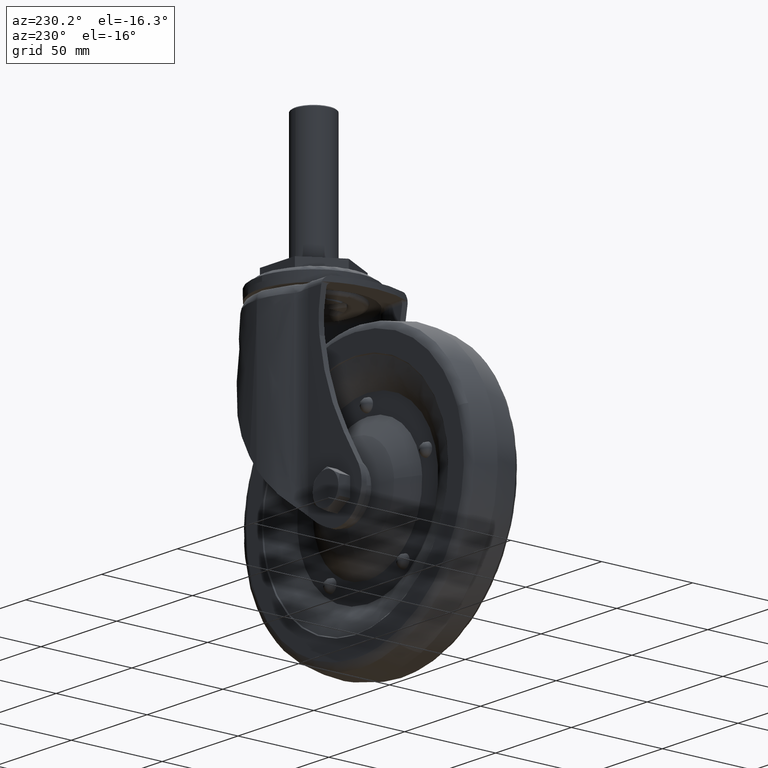
[diagram: clean part render]
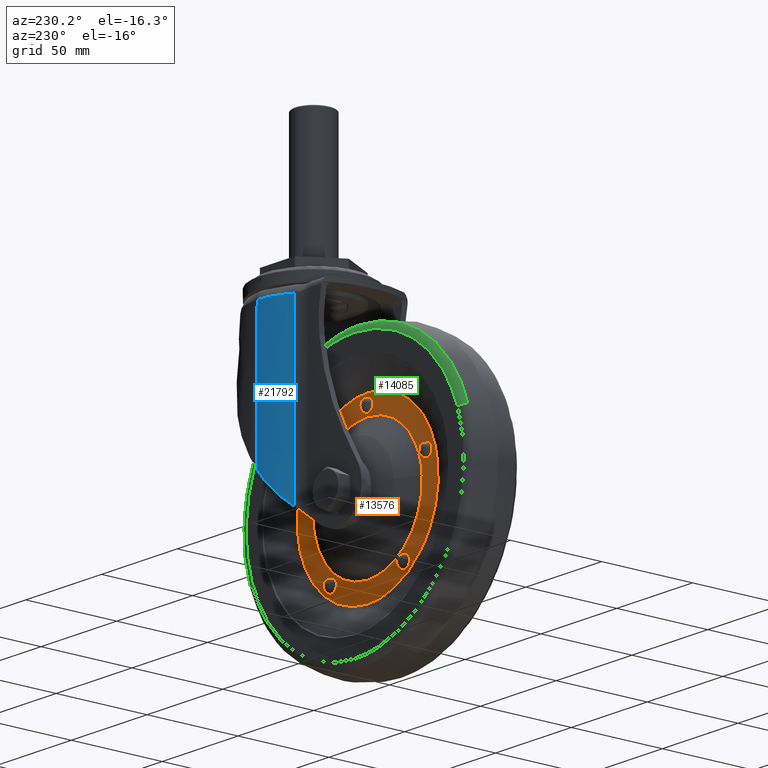
[diagram: same view with three faces highlighted in distinct colors, each labeled with its STEP entity id]
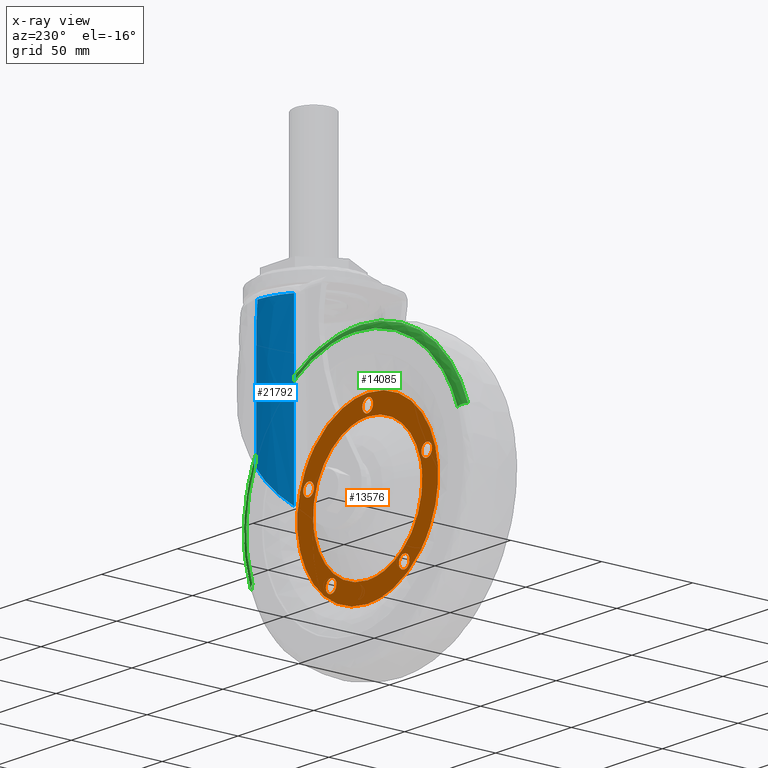
[diagram: x-ray of the same camera — body ghosted, the three highlighted faces saturated]
A machine part, auxiliary view with three faces highlighted in distinct colors.
The next image is the same camera in x-ray (body ghosted, the three faces saturated) — at least one of them is partly hidden behind the body in this view.
Their STEP definitions:

[orange] entity #13576 — the highlighted face is a freeform B-spline surface patch.
#12831=CARTESIAN_POINT('',(-79.932852743208727,6.999999999973571,-104.402252481111200));
#12832=VERTEX_POINT('',#12831);
#12838=CARTESIAN_POINT('',(-44.0,7.0,-70.599999904632583));
#12839=VERTEX_POINT('',#12838);
#12840=CARTESIAN_POINT('',(-44.0,7.0,-70.599999904632583));
#12841=CARTESIAN_POINT('',(-77.865418408374396,6.999999999986783,-70.599999904631403));
#12842=CARTESIAN_POINT('',(-79.932852743208727,6.999999999973571,-104.402252481111160));
#12850=(BOUNDED_CURVE()B_SPLINE_CURVE(2,(#12840,#12841,#12842),.UNSPECIFIED.,.F.,.U.)B_SPLINE_CURVE_WITH_KNOTS((3,3),(0.500000000000000,0.739332962240700),.UNSPECIFIED.)CURVE()GEOMETRIC_REPRESENTATION_ITEM()RATIONAL_B_SPLINE_CURVE((1.0,0.719603993284652,0.976072041670483))REPRESENTATION_ITEM(''));
#12851=EDGE_CURVE('',#12839,#12832,#12850,.T.);
#12853=CARTESIAN_POINT('',(-8.067147256791273,6.999999999973568,-108.797747328153900));
#12854=VERTEX_POINT('',#12853);
#12855=CARTESIAN_POINT('',(-8.067147256791273,6.999999999973568,-108.797747328153930));
#12856=CARTESIAN_POINT('',(-7.999999999962867,6.999999999973948,-107.699899383516540));
#12857=CARTESIAN_POINT('',(-7.999999999963443,6.999999999974352,-106.599999904634800));
#12858=CARTESIAN_POINT('',(-7.999999999982279,6.999999999987566,-70.599999904633663));
#12859=CARTESIAN_POINT('',(-44.0,7.0,-70.599999904632583));
#12867=(BOUNDED_CURVE()B_SPLINE_CURVE(2,(#12855,#12856,#12857,#12858,#12859),.UNSPECIFIED.,.F.,.U.)B_SPLINE_CURVE_WITH_KNOTS((3,2,3),(0.239332962240700,0.250000000000000,0.500000000000000),.UNSPECIFIED.)CURVE()GEOMETRIC_REPRESENTATION_ITEM()RATIONAL_B_SPLINE_CURVE((0.976072041670483,0.987502787901895,1.0,0.707106781186547,1.0))REPRESENTATION_ITEM(''));
#12868=EDGE_CURVE('',#12854,#12839,#12867,.T.);
#12898=CARTESIAN_POINT('',(-44.0,7.0,-142.599999904632600));
#12899=VERTEX_POINT('',#12898);
#12900=CARTESIAN_POINT('',(-44.0,7.0,-142.599999904632600));
#12901=CARTESIAN_POINT('',(-10.134581591625633,6.999999999986782,-142.599999904633680));
#12902=CARTESIAN_POINT('',(-8.067147256791273,6.999999999973568,-108.797747328153950));
#12910=(BOUNDED_CURVE()B_SPLINE_CURVE(2,(#12900,#12901,#12902),.UNSPECIFIED.,.F.,.U.)B_SPLINE_CURVE_WITH_KNOTS((3,3),(0.0,0.239332962240700),.UNSPECIFIED.)CURVE()GEOMETRIC_REPRESENTATION_ITEM()RATIONAL_B_SPLINE_CURVE((1.0,0.719603993284652,0.976072041670482))REPRESENTATION_ITEM(''));
#12911=EDGE_CURVE('',#12899,#12854,#12910,.T.);
#12913=CARTESIAN_POINT('',(-79.932852743208727,6.999999999973571,-104.402252481111160));
#12914=CARTESIAN_POINT('',(-80.000000000037133,6.999999999973951,-105.500100425748610));
#12915=CARTESIAN_POINT('',(-80.000000000036550,6.999999999974354,-106.599999904630290));
#12916=CARTESIAN_POINT('',(-80.000000000017721,6.999999999987569,-142.599999904631430));
#12917=CARTESIAN_POINT('',(-44.0,7.0,-142.599999904632600));
#12925=(BOUNDED_CURVE()B_SPLINE_CURVE(2,(#12913,#12914,#12915,#12916,#12917),.UNSPECIFIED.,.F.,.U.)B_SPLINE_CURVE_WITH_KNOTS((3,2,3),(0.739332962240700,0.750000000000000,1.0),.UNSPECIFIED.)CURVE()GEOMETRIC_REPRESENTATION_ITEM()RATIONAL_B_SPLINE_CURVE((0.976072041670483,0.987502787901896,1.0,0.707106781186547,1.0))REPRESENTATION_ITEM(''));
#12926=EDGE_CURVE('',#12832,#12899,#12925,.T.);
#13099=CARTESIAN_POINT('',(-82.993317168101399,7.0,-90.430303135259607));
#13100=VERTEX_POINT('',#13099);
#13101=CARTESIAN_POINT('',(-82.993317168101399,7.0,-97.430303135259720));
#13102=VERTEX_POINT('',#13101);
#13103=CARTESIAN_POINT('',(-82.993317168101399,7.0,-90.430303135259607));
#13104=CARTESIAN_POINT('',(-83.365553491881627,7.000000000000003,-90.430117954533557));
#13105=CARTESIAN_POINT('',(-84.138657910030133,7.0,-90.554684572518880));
#13106=CARTESIAN_POINT('',(-85.086781059677307,6.999999999999997,-91.061479309435867));
#13107=CARTESIAN_POINT('',(-85.862188045682529,7.000000000000015,-91.836817431341771));
#13108=CARTESIAN_POINT('',(-86.286818697975519,6.999999999999990,-92.631261616344801));
#13109=CARTESIAN_POINT('',(-86.492383916415406,7.000000000000053,-93.498197281616058));
#13110=CARTESIAN_POINT('',(-86.515516196637421,6.999999999999989,-94.421162093873050));
#13111=CARTESIAN_POINT('',(-86.231487493401715,7.000000000000002,-95.399879588436576));
#13112=CARTESIAN_POINT('',(-85.622297413137488,6.999999999999997,-96.311531010389373));
#13113=CARTESIAN_POINT('',(-84.934390602176862,7.000000000000034,-96.890327379424505));
#13114=CARTESIAN_POINT('',(-84.023927558849394,6.999999999999902,-97.320834416406456));
#13115=CARTESIAN_POINT('',(-83.394201281332656,7.000000000000172,-97.430585010562893));
#13116=CARTESIAN_POINT('',(-82.993317168101399,7.0,-97.430303135259720));
#13117=B_SPLINE_CURVE_WITH_KNOTS('',3,(#13103,#13104,#13105,#13106,#13107,#13108,#13109,#13110,#13111,#13112,#13113,#13114,#13115,#13116),.UNSPECIFIED.,.F.,.U.,(4,1,1,1,1,1,1,1,1,1,1,4),(0.000001586237522,1.116722092982620,2.319413558740227,3.178505098401925,4.381299374990087,4.982666651567375,5.841547006890866,7.130031557941915,7.989167000156897,9.105947477942133,9.793302684864337,10.995850212056080),.UNSPECIFIED.);
#13118=EDGE_CURVE('',#13100,#13102,#13117,.T.);
#13120=CARTESIAN_POINT('',(-82.993317168101399,7.0,-97.430303135259720));
#13121=CARTESIAN_POINT('',(-82.449076974518675,6.999999999999993,-97.431240799387453));
#13122=CARTESIAN_POINT('',(-81.590977086189383,7.000000000000014,-97.225872147214034));
#13123=CARTESIAN_POINT('',(-80.685663455754025,6.999999999999987,-96.604293461037273));
#13124=CARTESIAN_POINT('',(-80.067166798671678,7.000000000000005,-95.922102492956498));
#13125=CARTESIAN_POINT('',(-79.693263841853451,7.000000000000012,-95.201349338111370));
#13126=CARTESIAN_POINT('',(-79.480817198541644,6.999999999999990,-94.306522651762592));
#13127=CARTESIAN_POINT('',(-79.480795321037760,7.000000000000010,-93.467205792956008));
#13128=CARTESIAN_POINT('',(-79.704017512032706,6.999999999999994,-92.660920674927837));
#13129=CARTESIAN_POINT('',(-80.074623806056309,7.000000000000007,-91.946520532380461));
#13130=CARTESIAN_POINT('',(-80.614110263814112,7.000000000000018,-91.305304297845097));
#13131=CARTESIAN_POINT('',(-81.591029143568818,6.999999999999926,-90.634714848292063));
#13132=CARTESIAN_POINT('',(-82.449075723695358,7.000000000000098,-90.429409471209240));
#13133=CARTESIAN_POINT('',(-82.993317168101399,7.0,-90.430303135259607));
#13134=B_SPLINE_CURVE_WITH_KNOTS('',3,(#13120,#13121,#13122,#13123,#13124,#13125,#13126,#13127,#13128,#13129,#13130,#13131,#13132,#13133),.UNSPECIFIED.,.F.,.U.,(4,1,1,1,1,1,1,1,1,1,1,4),(0.000001586319264,1.632180601832674,2.577149056540140,3.264444827177924,4.381299375045226,4.982666651618551,6.013194217941173,6.872297417750684,7.473722892808548,8.418718699049418,9.363684959175060,10.995850212054579),.UNSPECIFIED.);
#13135=EDGE_CURVE('',#13102,#13100,#13134,.T.);
#13184=CARTESIAN_POINT('',(-68.099195343991454,7.0,-136.269696674005500));
#13185=VERTEX_POINT('',#13184);
#13186=CARTESIAN_POINT('',(-68.099195343991454,7.0,-143.269696674005590));
#13187=VERTEX_POINT('',#13186);
#13188=CARTESIAN_POINT('',(-68.099195343991454,7.0,-136.269696674005500));
#13189=CARTESIAN_POINT('',(-68.643461175294249,6.999999999999996,-136.268660574705390));
#13190=CARTESIAN_POINT('',(-69.501500981980257,7.000000000000013,-136.474226867519800));
#13191=CARTESIAN_POINT('',(-70.383029208593101,6.999999999999984,-137.079322244969890));
#13192=CARTESIAN_POINT('',(-70.969926002519742,7.000000000000001,-137.711022568377900));
#13193=CARTESIAN_POINT('',(-71.369407693620474,7.000000000000051,-138.416212422732400));
#13194=CARTESIAN_POINT('',(-71.611673599746311,6.999999999999934,-139.335543247537200));
#13195=CARTESIAN_POINT('',(-71.611824594877817,7.000000000000093,-140.319656782792290));
#13196=CARTESIAN_POINT('',(-71.305285242802981,6.999999999999844,-141.287237408769610));
#13197=CARTESIAN_POINT('',(-70.808218560030767,7.000000000000271,-142.030866418027610));
#13198=CARTESIAN_POINT('',(-70.224676579031595,6.999999999999820,-142.586404882150300));
#13199=CARTESIAN_POINT('',(-69.358623476307073,7.000000000000230,-143.105702998910000));
#13200=CARTESIAN_POINT('',(-68.586063232894844,6.999999999999814,-143.270346119171790));
#13201=CARTESIAN_POINT('',(-68.099195343991454,7.0,-143.269696674005590));
#13202=B_SPLINE_CURVE_WITH_KNOTS('',3,(#13188,#13189,#13190,#13191,#13192,#13193,#13194,#13195,#13196,#13197,#13198,#13199,#13200,#13201),.UNSPECIFIED.,.F.,.U.,(4,1,1,1,1,1,1,1,1,1,1,4),(0.000001586197858,1.632180601726480,2.577149056443185,3.178505098372550,4.209390948277521,4.982666651548460,6.013194217885307,7.130031557933042,7.989167000151278,8.676454476258789,9.535572786111366,10.995850212056419),.UNSPECIFIED.);
#13203=EDGE_CURVE('',#13185,#13187,#13202,.T.);
#13205=CARTESIAN_POINT('',(-68.099195343991454,7.0,-143.269696674005590));
#13206=CARTESIAN_POINT('',(-67.554899845616333,6.999999999999986,-143.270754406069900));
#13207=CARTESIAN_POINT('',(-66.754186663377922,7.000000000000019,-143.078794157831400));
#13208=CARTESIAN_POINT('',(-65.763976367184313,6.999999999999989,-142.434533632234800));
#13209=CARTESIAN_POINT('',(-65.187668512470211,7.000000000000004,-141.782849133733610));
#13210=CARTESIAN_POINT('',(-64.799718292118200,7.000000000000003,-141.011649555162510));
#13211=CARTESIAN_POINT('',(-64.586659737771555,6.999999999999996,-140.203850244150400));
#13212=CARTESIAN_POINT('',(-64.586721131167394,7.000000000000003,-139.364488046213410));
#13213=CARTESIAN_POINT('',(-64.803466523740823,6.999999999999996,-138.499324609572910));
#13214=CARTESIAN_POINT('',(-65.255692893703511,7.000000000000012,-137.626943874516000));
#13215=CARTESIAN_POINT('',(-66.006074580855241,6.999999999999974,-136.894817387667700));
#13216=CARTESIAN_POINT('',(-67.011335750071908,7.000000000000069,-136.389115638633310));
#13217=CARTESIAN_POINT('',(-67.698322740881466,6.999999999999837,-136.269424407663910));
#13218=CARTESIAN_POINT('',(-68.099195343991454,7.0,-136.269696674005500));
#13219=B_SPLINE_CURVE_WITH_KNOTS('',3,(#13205,#13206,#13207,#13208,#13209,#13210,#13211,#13212,#13213,#13214,#13215,#13216,#13217,#13218),.UNSPECIFIED.,.F.,.U.,(4,1,1,1,1,1,1,1,1,1,1,4),(0.000001586062560,1.632180601618250,2.405346678025667,3.522180740885740,4.209390948205517,4.982666651483560,6.013194217829605,6.700565300330409,7.645508739263376,8.934187961575274,9.793302684847593,10.995850212056370),.UNSPECIFIED.);
#13220=EDGE_CURVE('',#13187,#13185,#13219,.T.);
#13269=CARTESIAN_POINT('',(-19.900804656008550,7.0,-136.269696674005500));
#13270=VERTEX_POINT('',#13269);
#13271=CARTESIAN_POINT('',(-19.900804656008550,7.0,-143.269696674005590));
#13272=VERTEX_POINT('',#13271);
#13273=CARTESIAN_POINT('',(-19.900804656008550,7.0,-136.269696674005500));
#13274=CARTESIAN_POINT('',(-20.273064387169569,6.999999999999978,-136.269474750650090));
#13275=CARTESIAN_POINT('',(-20.960131074752240,7.000000000000036,-136.380405263246300));
#13276=CARTESIAN_POINT('',(-21.791128902559478,6.999999999999998,-136.785942066499590));
#13277=CARTESIAN_POINT('',(-22.413890559927161,6.999999999999983,-137.297126053762700));
#13278=CARTESIAN_POINT('',(-22.900011459281860,7.000000000000028,-137.904451279698690));
#13279=CARTESIAN_POINT('',(-23.245372832041539,6.999999999999965,-138.634731619225900));
#13280=CARTESIAN_POINT('',(-23.418381601571390,7.000000000000070,-139.452022266157510));
#13281=CARTESIAN_POINT('',(-23.399259050595312,6.999999999999957,-140.230691860226810));
#13282=CARTESIAN_POINT('',(-23.196549474508259,7.000000000000083,-141.040089548717190));
#13283=CARTESIAN_POINT('',(-22.757546171656081,6.999999999999925,-141.886670627760310));
#13284=CARTESIAN_POINT('',(-21.976785984234350,6.999999999999883,-142.667647407899410));
#13285=CARTESIAN_POINT('',(-20.960224824086009,7.000000000000279,-143.163492237101910));
#13286=CARTESIAN_POINT('',(-20.244416794886249,6.999999999999903,-143.269825120295990));
#13287=CARTESIAN_POINT('',(-19.900804656008550,7.0,-143.269696674005590));
#13288=B_SPLINE_CURVE_WITH_KNOTS('',3,(#13273,#13274,#13275,#13276,#13277,#13278,#13279,#13280,#13281,#13282,#13283,#13284,#13285,#13286,#13287),.UNSPECIFIED.,.F.,.U.,(4,1,1,1,1,1,1,1,1,1,1,1,4),(0.000001586505231,1.116722093222036,2.061678915779028,2.748970413438837,3.522180741174510,4.381299375150075,5.154344127144813,6.013194218020214,6.700565300494597,7.645508739391337,8.848240103769546,9.965000398668119,10.995850212054190),.UNSPECIFIED.);
#13289=EDGE_CURVE('',#13270,#13272,#13288,.T.);
#13291=CARTESIAN_POINT('',(-19.900804656008550,7.0,-143.269696674005590));
#13292=CARTESIAN_POINT('',(-19.471275606514912,6.999999999999991,-143.270081535452590));
#13293=CARTESIAN_POINT('',(-18.698458887485241,7.000000000000016,-143.125493257237110));
#13294=CARTESIAN_POINT('',(-17.615132839373349,6.999999999999998,-142.512298207572710));
#13295=CARTESIAN_POINT('',(-16.871681302772391,7.000000000000006,-141.650242138718990));
#13296=CARTESIAN_POINT('',(-16.431852602997640,6.999999999999989,-140.549963749081800));
#13297=CARTESIAN_POINT('',(-16.352766160503410,7.000000000000027,-139.477798676364390));
#13298=CARTESIAN_POINT('',(-16.627068950393639,6.999999999999986,-138.382722456924800));
#13299=CARTESIAN_POINT('',(-17.159572926644000,6.999999999999976,-137.518571026903910));
#13300=CARTESIAN_POINT('',(-17.822442943223979,6.999999999999969,-136.918054058328810));
#13301=CARTESIAN_POINT('',(-18.698642181798760,7.000000000000048,-136.421541596383010));
#13302=CARTESIAN_POINT('',(-19.413919457519771,6.999999999999890,-136.269028356140100));
#13303=CARTESIAN_POINT('',(-19.900804656008550,7.0,-136.269696674005500));
#13304=B_SPLINE_CURVE_WITH_KNOTS('',3,(#13291,#13292,#13293,#13294,#13295,#13296,#13297,#13298,#13299,#13300,#13301,#13302,#13303),.UNSPECIFIED.,.F.,.U.,(4,1,1,1,1,1,1,1,1,1,4),(0.000001586370365,1.288486425983416,2.319413558841291,3.693940918221593,4.639026588546344,5.841547006947147,6.872297417760546,7.989167000188742,8.848240103741036,9.535572786127565,10.995850212054251),.UNSPECIFIED.);
#13305=EDGE_CURVE('',#13272,#13270,#13304,.T.);
#13354=CARTESIAN_POINT('',(-5.006682831898601,7.0,-90.430303135259607));
#13355=VERTEX_POINT('',#13354);
#13356=CARTESIAN_POINT('',(-5.006682831898601,7.0,-97.430303135259720));
#13357=VERTEX_POINT('',#13356);
#13358=CARTESIAN_POINT('',(-5.006682831898601,7.0,-90.430303135259607));
#13359=CARTESIAN_POINT('',(-5.436230654998404,6.999999999999997,-90.429918451483530));
#13360=CARTESIAN_POINT('',(-6.123139887825552,7.000000000000006,-90.558459889068189));
#13361=CARTESIAN_POINT('',(-6.941441613941748,7.000000000000001,-90.983121123570186));
#13362=CARTESIAN_POINT('',(-7.564268580454339,6.999999999999988,-91.494195722403674));
#13363=CARTESIAN_POINT('',(-8.089292504111697,7.000000000000018,-92.184094057050245));
#13364=CARTESIAN_POINT('',(-8.421844967840201,6.999999999999979,-93.015917133440510));
#13365=CARTESIAN_POINT('',(-8.541977152229244,7.000000000000036,-93.900873036527287));
#13366=CARTESIAN_POINT('',(-8.456001015754630,7.000000000000013,-94.676204059346190));
#13367=CARTESIAN_POINT('',(-8.184888646470697,6.999999999999891,-95.464335165616319));
#13368=CARTESIAN_POINT('',(-7.745338223829847,7.000000000000269,-96.177831276235750));
#13369=CARTESIAN_POINT('',(-7.110110463404851,6.999999999999902,-96.767802682020459));
#13370=CARTESIAN_POINT('',(-6.208838083879243,6.999999999999999,-97.278437451332806));
#13371=CARTESIAN_POINT('',(-5.493569280686771,7.000000000000401,-97.430978148018866));
#13372=CARTESIAN_POINT('',(-5.006682831898601,7.0,-97.430303135259720));
#13373=B_SPLINE_CURVE_WITH_KNOTS('',3,(#13358,#13359,#13360,#13361,#13362,#13363,#13364,#13365,#13366,#13367,#13368,#13369,#13370,#13371,#13372),.UNSPECIFIED.,.F.,.U.,(4,1,1,1,1,1,1,1,1,1,1,1,4),(0.000001586127459,1.288486425771817,2.061678915474330,2.748970413158450,3.693940918068038,4.639026588415502,5.412154218731385,6.356854690025460,6.958272956428421,7.903245018187613,8.848240103699856,9.535572786100271,10.995850212056069),.UNSPECIFIED.);
#13374=EDGE_CURVE('',#13355,#13357,#13373,.T.);
#13376=CARTESIAN_POINT('',(-5.006682831898601,7.0,-97.430303135259720));
#13377=CARTESIAN_POINT('',(-4.548454340186822,7.000000000000003,-97.430793145115402));
#13378=CARTESIAN_POINT('',(-3.833010929998615,6.999999999999997,-97.287652213316349));
#13379=CARTESIAN_POINT('',(-2.974918125097176,7.0,-96.815199732773380));
#13380=CARTESIAN_POINT('',(-2.305695513426159,7.000000000000015,-96.223677657773351));
#13381=CARTESIAN_POINT('',(-1.783796915433548,6.999999999999954,-95.421469257517288));
#13382=CARTESIAN_POINT('',(-1.494161052356510,7.000000000000075,-94.422334083821255));
#13383=CARTESIAN_POINT('',(-1.494205166596153,6.999999999999970,-93.525098175771404));
#13384=CARTESIAN_POINT('',(-1.717893926609342,7.000000000000037,-92.631968189773971));
#13385=CARTESIAN_POINT('',(-2.168065175637757,6.999999999999926,-91.789411214594267));
#13386=CARTESIAN_POINT('',(-2.853123067589884,7.000000000000001,-91.121088129873144));
#13387=CARTESIAN_POINT('',(-3.804558341972303,7.000000000000002,-90.582206470061323));
#13388=CARTESIAN_POINT('',(-4.519787704407229,6.999999999999971,-90.429617202069920));
#13389=CARTESIAN_POINT('',(-5.006682831898601,7.0,-90.430303135259607));
#13390=B_SPLINE_CURVE_WITH_KNOTS('',3,(#13376,#13377,#13378,#13379,#13380,#13381,#13382,#13383,#13384,#13385,#13386,#13387,#13388,#13389),.UNSPECIFIED.,.F.,.U.,(4,1,1,1,1,1,1,1,1,1,1,4),(0.000001586306363,1.374451422636142,2.147629104122808,2.920784143546919,4.037640874130036,4.982666651610009,6.013194217934887,6.700565300421815,7.731441761227092,8.848240103735430,9.535572786124337,10.995850212054600),.UNSPECIFIED.);
#13391=EDGE_CURVE('',#13357,#13355,#13390,.T.);
#13440=CARTESIAN_POINT('',(-44.0,7.0,-62.099999904632497));
#13441=VERTEX_POINT('',#13440);
#13442=CARTESIAN_POINT('',(-44.0,7.0,-69.099999904632625));
#13443=VERTEX_POINT('',#13442);
#13444=CARTESIAN_POINT('',(-44.0,7.0,-62.099999904632497));
#13445=CARTESIAN_POINT('',(-44.515520671296940,6.999999999999996,-62.099272440971362));
#13446=CARTESIAN_POINT('',(-45.373870131251479,7.000000000000006,-62.293271386751307));
#13447=CARTESIAN_POINT('',(-46.288361075734088,6.999999999999992,-62.904612272531267));
#13448=CARTESIAN_POINT('',(-46.926088296394603,7.000000000000008,-63.608224582873113));
#13449=CARTESIAN_POINT('',(-47.393740776210947,6.999999999999985,-64.509019044392929));
#13450=CARTESIAN_POINT('',(-47.551329025843813,7.000000000000026,-65.572610503002196));
#13451=CARTESIAN_POINT('',(-47.403040362361793,6.999999999999992,-66.571373259028192));
#13452=CARTESIAN_POINT('',(-46.993426725194198,7.000000000000025,-67.527762774380889));
#13453=CARTESIAN_POINT('',(-46.260367870327222,6.999999999999901,-68.356727786428138));
#13454=CARTESIAN_POINT('',(-45.202405942544537,7.000000000000219,-68.955903583420010));
#13455=CARTESIAN_POINT('',(-44.429520000939817,6.999999999999838,-69.100306237452315));
#13456=CARTESIAN_POINT('',(-44.0,7.0,-69.099999904632625));
#13457=B_SPLINE_CURVE_WITH_KNOTS('',3,(#13444,#13445,#13446,#13447,#13448,#13449,#13450,#13451,#13452,#13453,#13454,#13455,#13456),.UNSPECIFIED.,.F.,.U.,(4,1,1,1,1,1,1,1,1,1,4),(0.000001586358158,1.546221176032368,2.577149056572852,3.264444827208713,4.381299375072754,5.583700919653530,6.442882824365334,7.387768546910872,8.676454476294182,9.707335583658947,10.995850212054769),.UNSPECIFIED.);
#13458=EDGE_CURVE('',#13441,#13443,#13457,.T.);
#13460=CARTESIAN_POINT('',(-44.0,7.0,-69.099999904632625));
#13461=CARTESIAN_POINT('',(-43.484516983296103,7.000000000000003,-69.100749008044303));
#13462=CARTESIAN_POINT('',(-42.568777561875933,6.999999999999997,-68.893871763529987));
#13463=CARTESIAN_POINT('',(-41.594813976335452,7.000000000000009,-68.207689384063855));
#13464=CARTESIAN_POINT('',(-41.000821697757047,6.999999999999994,-67.465218326598617));
#13465=CARTESIAN_POINT('',(-40.618375733398182,7.000000000000012,-66.656717062261151));
#13466=CARTESIAN_POINT('',(-40.434996963411074,7.000000000000003,-65.601478675576658));
#13467=CARTESIAN_POINT('',(-40.610877569749867,7.000000000000004,-64.509015237910830));
#13468=CARTESIAN_POINT('',(-41.156609944721133,6.999999999999959,-63.457312565832893));
#13469=CARTESIAN_POINT('',(-41.948483654527429,7.000000000000124,-62.684372699439663));
#13470=CARTESIAN_POINT('',(-42.969274413955553,6.999999999999779,-62.202007260390658));
#13471=CARTESIAN_POINT('',(-43.656381939463039,7.000000000000250,-62.099876191207393));
#13472=CARTESIAN_POINT('',(-44.0,7.0,-62.099999904632497));
#13473=B_SPLINE_CURVE_WITH_KNOTS('',3,(#13460,#13461,#13462,#13463,#13464,#13465,#13466,#13467,#13468,#13469,#13470,#13471,#13472),.UNSPECIFIED.,.F.,.U.,(4,1,1,1,1,1,1,1,1,1,4),(0.000001586303851,1.546221175981970,2.748970413288737,3.522180741039675,4.381299375032526,5.412154218819691,6.700565300419211,7.645508739334058,8.934187961618815,9.965000398651826,10.995850212054821),.UNSPECIFIED.);
#13474=EDGE_CURVE('',#13443,#13441,#13473,.T.);
#13479=CARTESIAN_POINT('',(-95.122090038953161,7.0,-157.745349724380590));
#13480=CARTESIAN_POINT('',(-95.122090038953161,7.0,-55.454647590430227));
#13481=CARTESIAN_POINT('',(7.122092532273101,7.0,-157.745349724380590));
#13482=CARTESIAN_POINT('',(7.122092532273101,7.0,-55.454647590430227));
#13483=B_SPLINE_SURFACE_WITH_KNOTS('',1,1,((#13479,#13481),(#13480,#13482)),.UNSPECIFIED.,.F.,.F.,.U.,(2,2),(2,2),(0.0,102.290702133950400),(0.0,102.244182571226300),.UNSPECIFIED.);
#13484=CARTESIAN_POINT('',(-79.072689204427107,7.000000000272994,-137.131237547342690));
#13485=VERTEX_POINT('',#13484);
#13486=CARTESIAN_POINT('',(-44.0,6.999999999999973,-153.099999904632600));
#13487=VERTEX_POINT('',#13486);
#13488=CARTESIAN_POINT('',(-79.072689204427107,7.000000000272994,-137.131237547342690));
#13489=CARTESIAN_POINT('',(-65.171671362369707,7.000000000136483,-153.099999904724310));
#13490=CARTESIAN_POINT('',(-44.0,6.999999999999973,-153.099999904632600));
#13498=(BOUNDED_CURVE()B_SPLINE_CURVE(2,(#13488,#13489,#13490),.UNSPECIFIED.,.F.,.U.)B_SPLINE_CURVE_WITH_KNOTS((3,3),(0.864567192700934,1.0),.UNSPECIFIED.)CURVE()GEOMETRIC_REPRESENTATION_ITEM()RATIONAL_B_SPLINE_CURVE((0.854573535032640,0.841330596548938,1.0))REPRESENTATION_ITEM(''));
#13499=EDGE_CURVE('',#13485,#13487,#13498,.T.);
#13500=ORIENTED_EDGE('',*,*,#13499,.F.);
#13501=CARTESIAN_POINT('',(-44.0,7.0,-60.099999904632568));
#13502=VERTEX_POINT('',#13501);
#13503=CARTESIAN_POINT('',(-44.0,7.0,-60.099999904632568));
#13504=CARTESIAN_POINT('',(-90.500000000047962,7.000000000062148,-60.099999904674327));
#13505=CARTESIAN_POINT('',(-90.500000000153307,7.000000000198645,-106.599999904765990));
#13506=CARTESIAN_POINT('',(-90.500000000192728,7.000000000249734,-124.004140484538710));
#13507=CARTESIAN_POINT('',(-79.072689204427107,7.000000000272994,-137.131237547342690));
#13515=(BOUNDED_CURVE()B_SPLINE_CURVE(2,(#13503,#13504,#13505,#13506,#13507),.UNSPECIFIED.,.F.,.U.)B_SPLINE_CURVE_WITH_KNOTS((3,2,3),(0.500000000000000,0.750000000000000,0.864567192700934),.UNSPECIFIED.)CURVE()GEOMETRIC_REPRESENTATION_ITEM()RATIONAL_B_SPLINE_CURVE((1.0,0.707106781186547,1.0,0.865776184637610,0.854573535032640))REPRESENTATION_ITEM(''));
#13516=EDGE_CURVE('',#13502,#13485,#13515,.T.);
#13517=ORIENTED_EDGE('',*,*,#13516,.F.);
#13518=CARTESIAN_POINT('',(-8.927310795572893,7.000000000272997,-76.068762261922501));
#13519=VERTEX_POINT('',#13518);
#13520=CARTESIAN_POINT('',(-8.927310795572893,7.000000000272997,-76.068762261922487));
#13521=CARTESIAN_POINT('',(-22.828328637630282,7.000000000136499,-60.099999904540866));
#13522=CARTESIAN_POINT('',(-44.0,7.0,-60.099999904632568));
#13530=(BOUNDED_CURVE()B_SPLINE_CURVE(2,(#13520,#13521,#13522),.UNSPECIFIED.,.F.,.U.)B_SPLINE_CURVE_WITH_KNOTS((3,3),(0.364567192700934,0.500000000000000),.UNSPECIFIED.)CURVE()GEOMETRIC_REPRESENTATION_ITEM()RATIONAL_B_SPLINE_CURVE((0.854573535032640,0.841330596548937,1.0))REPRESENTATION_ITEM(''));
#13531=EDGE_CURVE('',#13519,#13502,#13530,.T.);
#13532=ORIENTED_EDGE('',*,*,#13531,.F.);
#13533=CARTESIAN_POINT('',(-44.0,6.999999999999973,-153.099999904632600));
#13534=CARTESIAN_POINT('',(2.500000000047962,7.000000000062127,-153.099999904590900));
#13535=CARTESIAN_POINT('',(2.500000000153285,7.000000000198638,-106.599999904499100));
#13536=CARTESIAN_POINT('',(2.500000000192707,7.000000000249733,-89.195859324726428));
#13537=CARTESIAN_POINT('',(-8.927310795572893,7.000000000272997,-76.068762261922501));
#13545=(BOUNDED_CURVE()B_SPLINE_CURVE(2,(#13533,#13534,#13535,#13536,#13537),.UNSPECIFIED.,.F.,.U.)B_SPLINE_CURVE_WITH_KNOTS((3,2,3),(0.0,0.250000000000000,0.364567192700934),.UNSPECIFIED.)CURVE()GEOMETRIC_REPRESENTATION_ITEM()RATIONAL_B_SPLINE_CURVE((1.0,0.707106781186547,1.0,0.865776184637610,0.854573535032640))REPRESENTATION_ITEM(''));
#13546=EDGE_CURVE('',#13487,#13519,#13545,.T.);
#13547=ORIENTED_EDGE('',*,*,#13546,.F.);
#13548=EDGE_LOOP('',(#13500,#13517,#13532,#13547));
#13549=FACE_OUTER_BOUND('',#13548,.T.);
#13550=ORIENTED_EDGE('',*,*,#13391,.T.);
#13551=ORIENTED_EDGE('',*,*,#13374,.T.);
#13552=EDGE_LOOP('',(#13550,#13551));
#13553=FACE_BOUND('',#13552,.T.);
#13554=ORIENTED_EDGE('',*,*,#13220,.T.);
#13555=ORIENTED_EDGE('',*,*,#13203,.T.);
#13556=EDGE_LOOP('',(#13554,#13555));
#13557=FACE_BOUND('',#13556,.T.);
#13558=ORIENTED_EDGE('',*,*,#13474,.T.);
#13559=ORIENTED_EDGE('',*,*,#13458,.T.);
#13560=EDGE_LOOP('',(#13558,#13559));
#13561=FACE_BOUND('',#13560,.T.);
#13562=ORIENTED_EDGE('',*,*,#13305,.T.);
#13563=ORIENTED_EDGE('',*,*,#13289,.T.);
#13564=EDGE_LOOP('',(#13562,#13563));
#13565=FACE_BOUND('',#13564,.T.);
#13566=ORIENTED_EDGE('',*,*,#13135,.T.);
#13567=ORIENTED_EDGE('',*,*,#13118,.T.);
#13568=EDGE_LOOP('',(#13566,#13567));
#13569=FACE_BOUND('',#13568,.T.);
#13570=ORIENTED_EDGE('',*,*,#12851,.T.);
#13571=ORIENTED_EDGE('',*,*,#12926,.T.);
#13572=ORIENTED_EDGE('',*,*,#12911,.T.);
#13573=ORIENTED_EDGE('',*,*,#12868,.T.);
#13574=EDGE_LOOP('',(#13570,#13571,#13572,#13573));
#13575=FACE_BOUND('',#13574,.T.);
#13576=ADVANCED_FACE('',(#13549,#13553,#13557,#13561,#13565,#13569,#13575),#13483,.T.);

[blue] entity #21792 — the highlighted face is a freeform B-spline surface patch.
#19784=CARTESIAN_POINT('',(-17.988086873891149,25.859047059812749,-13.899999904632571));
#19785=VERTEX_POINT('',#19784);
#19881=CARTESIAN_POINT('',(-0.597051225991669,31.494347337750099,-13.899999904632571));
#19882=VERTEX_POINT('',#19881);
#19896=CARTESIAN_POINT('',(-17.988086873891159,25.859047059812760,-13.899999904632571));
#19897=CARTESIAN_POINT('',(-10.146953599013468,31.313403570596133,-13.899999904632576));
#19898=CARTESIAN_POINT('',(-0.597051225991674,31.494347337750110,-13.899999904632571));
#19906=(BOUNDED_CURVE()B_SPLINE_CURVE(2,(#19896,#19897,#19898),.UNSPECIFIED.,.F.,.U.)CURVE()GEOMETRIC_REPRESENTATION_ITEM()QUASI_UNIFORM_CURVE()RATIONAL_B_SPLINE_CURVE((1.0,0.956972433414193,1.0))REPRESENTATION_ITEM(''));
#19907=EDGE_CURVE('',#19785,#19882,#19906,.T.);
#21248=CARTESIAN_POINT('',(-17.988086873891149,25.859047059812749,-107.739846706140800));
#21249=VERTEX_POINT('',#21248);
#21250=CARTESIAN_POINT('',(-17.988086873891149,25.859047059812749,-107.739846706140800));
#21251=CARTESIAN_POINT('',(-17.988086873891149,25.859047059812749,-13.899999904632571));
#21252=QUASI_UNIFORM_CURVE('',1,(#21250,#21251),.UNSPECIFIED.,.F.,.U.);
#21253=EDGE_CURVE('',#21249,#19785,#21252,.T.);
#21295=CARTESIAN_POINT('',(-0.000322000000102,31.500000000000000,-23.418360256435719));
#21296=VERTEX_POINT('',#21295);
#21297=CARTESIAN_POINT('',(-0.597051225991669,31.494347337750099,-13.899999904632571));
#21298=CARTESIAN_POINT('',(-0.298713386102696,31.500000000000004,-18.658753025737273));
#21299=CARTESIAN_POINT('',(-0.000322000000097,31.500000000000000,-23.418360256435641));
#21307=(BOUNDED_CURVE()B_SPLINE_CURVE(2,(#21297,#21298,#21299),.UNSPECIFIED.,.F.,.U.)CURVE()GEOMETRIC_REPRESENTATION_ITEM()QUASI_UNIFORM_CURVE()RATIONAL_B_SPLINE_CURVE((1.0,0.999955136599070,1.0))REPRESENTATION_ITEM(''));
#21308=EDGE_CURVE('',#19882,#21296,#21307,.T.);
#21739=CARTESIAN_POINT('',(-18.658833854298940,25.379321018951408,-110.085842876178500));
#21740=CARTESIAN_POINT('',(-18.658833854298940,25.379321018951408,-11.495353830343920));
#21741=CARTESIAN_POINT('',(-9.911529365067256,31.810213491749096,-110.085842876178430));
#21742=CARTESIAN_POINT('',(-9.911529365067256,31.810213491749096,-11.495353830343920));
#21743=CARTESIAN_POINT('',(0.940501090043334,31.485946895611075,-110.085842876178480));
#21744=CARTESIAN_POINT('',(0.940501090043334,31.485946895611075,-11.495353830343916));
#21752=(BOUNDED_SURFACE()B_SPLINE_SURFACE(1,2,((#21739,#21741,#21743),(#21740,#21742,#21744)),.UNSPECIFIED.,.F.,.F.,.U.)B_SPLINE_SURFACE_WITH_KNOTS((2,2),(3,3),(0.0,98.590489045834559),(0.0,21.104555932008669),.UNSPECIFIED.)GEOMETRIC_REPRESENTATION_ITEM()RATIONAL_B_SPLINE_SURFACE(((1.0,0.944087478375961,0.997180931066303),(1.0,0.944087478375961,0.997180931066303)))REPRESENTATION_ITEM('')SURFACE());
#21753=ORIENTED_EDGE('',*,*,#21253,.T.);
#21754=ORIENTED_EDGE('',*,*,#19907,.T.);
#21755=ORIENTED_EDGE('',*,*,#21308,.T.);
#21756=CARTESIAN_POINT('',(-0.000322000000108,31.500000000000000,-88.313526294647573));
#21757=VERTEX_POINT('',#21756);
#21758=CARTESIAN_POINT('',(-0.000322000000108,31.500000000000000,-88.313526294647573));
#21759=CARTESIAN_POINT('',(-0.000322000000102,31.500000000000000,-23.418360256435719));
#21760=QUASI_UNIFORM_CURVE('',1,(#21758,#21759),.UNSPECIFIED.,.F.,.U.);
#21761=EDGE_CURVE('',#21757,#21296,#21760,.T.);
#21762=ORIENTED_EDGE('',*,*,#21761,.F.);
#21763=CARTESIAN_POINT('',(-17.988086873891142,25.859047059812781,-107.739846706140800));
#21764=CARTESIAN_POINT('',(-17.227463733148038,26.388142744649151,-107.070611058152590));
#21765=CARTESIAN_POINT('',(-16.456093316327419,26.875003527858478,-106.376100136389100));
#21766=CARTESIAN_POINT('',(-15.286417667746610,27.546094737655970,-105.296069647176790));
#21767=CARTESIAN_POINT('',(-14.896580050192609,27.758668703229940,-104.931671619014100));
#21768=CARTESIAN_POINT('',(-14.118304846783730,28.162470637561700,-104.195047833456900));
#21769=CARTESIAN_POINT('',(-13.729717823728340,28.353783102765082,-103.822684262557900));
#21770=CARTESIAN_POINT('',(-12.566121133895001,28.897819914651329,-102.693568326348100));
#21771=CARTESIAN_POINT('',(-11.793288499601969,29.220701702171340,-101.924797933855400));
#21772=CARTESIAN_POINT('',(-10.255785472450050,29.795115972139719,-100.355691725011500));
#21773=CARTESIAN_POINT('',(-9.491110609839357,30.046629295647499,-99.555353812017231));
#21774=CARTESIAN_POINT('',(-7.971923743538484,30.484890783946280,-97.923388219182769));
#21775=CARTESIAN_POINT('',(-7.217408725550316,30.671626326334430,-97.091759224587037));
#21776=CARTESIAN_POINT('',(-6.094577307475800,30.907220884833791,-95.820938383380550));
#21777=CARTESIAN_POINT('',(-5.721788727222186,30.978326288110399,-95.393434108673574));
#21778=CARTESIAN_POINT('',(-5.164991634058021,31.074292555935621,-94.746334140740402));
#21779=CARTESIAN_POINT('',(-4.979790157083413,31.104498946712539,-94.529660167127389));
#21780=CARTESIAN_POINT('',(-4.610206969412083,31.161417143997749,-94.094363985721600));
#21781=CARTESIAN_POINT('',(-4.425977003019686,31.188103409050939,-93.875918534244562));
#21782=CARTESIAN_POINT('',(-3.509518686861136,31.312665200577040,-92.781944580721827));
#21783=CARTESIAN_POINT('',(-2.789560454193612,31.384266393715631,-91.899060218988964));
#21784=CARTESIAN_POINT('',(-1.375580890814093,31.477939754839380,-90.117867716972327));
#21785=CARTESIAN_POINT('',(-0.681560149801170,31.500000000000000,-89.219559796870968));
#21786=CARTESIAN_POINT('',(-0.000322000000084,31.500000000000000,-88.313526294647588));
#21787=B_SPLINE_CURVE_WITH_KNOTS('',3,(#21763,#21764,#21765,#21766,#21767,#21768,#21769,#21770,#21771,#21772,#21773,#21774,#21775,#21776,#21777,#21778,#21779,#21780,#21781,#21782,#21783,#21784,#21785,#21786),.UNSPECIFIED.,.F.,.U.,(4,2,2,2,2,2,2,2,2,2,2,4),(0.0,0.125000000000002,0.187500000000002,0.250000000000003,0.375000000000004,0.500000000000004,0.625000000000005,0.687500000000005,0.718750000000005,0.750000000000005,0.875000000000002,1.0),.UNSPECIFIED.);
#21788=EDGE_CURVE('',#21249,#21757,#21787,.T.);
#21789=ORIENTED_EDGE('',*,*,#21788,.F.);
#21790=EDGE_LOOP('',(#21753,#21754,#21755,#21762,#21789));
#21791=FACE_OUTER_BOUND('',#21790,.T.);
#21792=ADVANCED_FACE('',(#21791),#21752,.T.);

[green] entity #14085 — the highlighted face is a freeform B-spline surface patch.
#13910=CARTESIAN_POINT('',(-111.747081916940100,14.0,-82.689311420728544));
#13911=VERTEX_POINT('',#13910);
#13929=CARTESIAN_POINT('',(-44.0,14.0,-34.757198402390173));
#13930=VERTEX_POINT('',#13929);
#13931=CARTESIAN_POINT('',(-44.0,14.0,-34.757198402390173));
#13932=CARTESIAN_POINT('',(-94.829898304983416,13.999999999999998,-34.757198397358842));
#13933=CARTESIAN_POINT('',(-111.747081916940000,13.999999999999995,-82.689311420728544));
#13941=(BOUNDED_CURVE()B_SPLINE_CURVE(2,(#13931,#13932,#13933),.UNSPECIFIED.,.F.,.U.)B_SPLINE_CURVE_WITH_KNOTS((3,3),(0.500000000000000,0.693451214483278),.UNSPECIFIED.)CURVE()GEOMETRIC_REPRESENTATION_ITEM()RATIONAL_B_SPLINE_CURVE((1.0,0.773357804426485,0.897469272747794))REPRESENTATION_ITEM(''));
#13942=EDGE_CURVE('',#13930,#13911,#13941,.T.);
#13944=CARTESIAN_POINT('',(23.747081916940051,14.0,-130.510688388536610));
#13945=VERTEX_POINT('',#13944);
#13946=CARTESIAN_POINT('',(23.747081916940044,14.000000000000005,-130.510688388536610));
#13947=CARTESIAN_POINT('',(27.842801529025717,14.000000000000005,-118.906127006408430));
#13948=CARTESIAN_POINT('',(27.842801526583870,14.0,-106.599999913223700));
#13949=CARTESIAN_POINT('',(27.842801512328382,13.999999999999998,-34.757198405949921));
#13950=CARTESIAN_POINT('',(-44.0,14.0,-34.757198402390173));
#13958=(BOUNDED_CURVE()B_SPLINE_CURVE(2,(#13946,#13947,#13948,#13949,#13950),.UNSPECIFIED.,.F.,.U.)B_SPLINE_CURVE_WITH_KNOTS((3,2,3),(0.193451214483278,0.250000000000000,0.500000000000000),.UNSPECIFIED.)CURVE()GEOMETRIC_REPRESENTATION_ITEM()RATIONAL_B_SPLINE_CURVE((0.897469272747794,0.933748976760063,1.0,0.707106781186548,1.0))REPRESENTATION_ITEM(''));
#13959=EDGE_CURVE('',#13945,#13930,#13958,.T.);
#13983=CARTESIAN_POINT('',(23.530047833672452,13.993373090845894,-130.434088271529930));
#13984=CARTESIAN_POINT('',(47.364136200569767,13.993373090845891,-62.904040437857475));
#13985=CARTESIAN_POINT('',(-20.165911633102677,13.993373090845894,-39.069952070960127));
#13986=CARTESIAN_POINT('',(-87.695959466775122,13.993373090845891,-15.235863704062812));
#13987=CARTESIAN_POINT('',(-111.530047833672510,13.993373090845894,-82.765911537735249));
#13988=CARTESIAN_POINT('',(26.567506988295595,14.179018312776007,-131.506130602677620));
#13989=CARTESIAN_POINT('',(51.473637686340659,14.179018312776011,-60.938623614382074));
#13990=CARTESIAN_POINT('',(-19.093869301954928,14.179018312776007,-36.032492916336992));
#13991=CARTESIAN_POINT('',(-89.661376290250516,14.179018312776011,-11.126362218291934));
#13992=CARTESIAN_POINT('',(-114.567506988295590,14.179018312776007,-81.693869206587493));
#13993=CARTESIAN_POINT('',(27.381531888333058,11.070205380750693,-131.793432952116720));
#13994=CARTESIAN_POINT('',(52.574964935817178,11.070205380750689,-60.411901063783681));
#13995=CARTESIAN_POINT('',(-18.806566952515844,11.070205380750693,-35.218468016299518));
#13996=CARTESIAN_POINT('',(-90.188098840848866,11.070205380750689,-10.025034968815373));
#13997=CARTESIAN_POINT('',(-115.381531888333060,11.070205380750693,-81.406566857148420));
#14005=(BOUNDED_SURFACE()B_SPLINE_SURFACE(2,2,((#13983,#13988,#13993),(#13984,#13989,#13994),(#13985,#13990,#13995),(#13986,#13991,#13996),(#13987,#13992,#13997)),.UNSPECIFIED.,.F.,.F.,.U.)B_SPLINE_SURFACE_WITH_KNOTS((3,2,3),(3,3),(0.0,125.418856226885100,250.837712453770190),(0.0,5.648613346584023),.UNSPECIFIED.)GEOMETRIC_REPRESENTATION_ITEM()RATIONAL_B_SPLINE_SURFACE(((0.921028881759320,0.716671092863514,0.920477656439962),(0.651265767960678,0.506762989644165,0.650875992799399),(0.921028881759320,0.716671092863514,0.920477656439962),(0.651265767960678,0.506762989644165,0.650875992799399),(0.921028881759320,0.716671092863514,0.920477656439962)))REPRESENTATION_ITEM('')SURFACE());
#14006=CARTESIAN_POINT('',(27.317402419371430,11.290322580617250,-131.770799065772910));
#14007=VERTEX_POINT('',#14006);
#14008=CARTESIAN_POINT('',(-17.935010896126741,11.290322580578801,-35.604525673702277));
#14009=VERTEX_POINT('',#14008);
#14010=CARTESIAN_POINT('',(27.317402419371419,11.290322580617257,-131.770799065772910));
#14011=CARTESIAN_POINT('',(31.628969438023542,11.290322580611578,-119.554668852397460));
#14012=CARTESIAN_POINT('',(31.628969438023731,11.290322580605920,-106.599999904621300));
#14013=CARTESIAN_POINT('',(31.628969438024473,11.290322580582856,-53.801243441262663));
#14014=CARTESIAN_POINT('',(-17.935010896126744,11.290322580578799,-35.604525673702284));
#14022=(BOUNDED_CURVE()B_SPLINE_CURVE(2,(#14010,#14011,#14012,#14013,#14014),.UNSPECIFIED.,.F.,.U.)B_SPLINE_CURVE_WITH_KNOTS((3,2,3),(0.193451214484607,0.250000000000000,0.441460350202644),.UNSPECIFIED.)CURVE()GEOMETRIC_REPRESENTATION_ITEM()RATIONAL_B_SPLINE_CURVE((0.897469272749499,0.933748976761620,1.0,0.775690247015987,0.894951884913475))REPRESENTATION_ITEM(''));
#14023=EDGE_CURVE('',#14007,#14009,#14022,.T.);
#14024=ORIENTED_EDGE('',*,*,#14023,.F.);
#14025=CARTESIAN_POINT('',(23.747081916940044,14.0,-130.510688388536610));
#14026=CARTESIAN_POINT('',(26.446592540692254,13.999999978361005,-131.463454998306450));
#14027=CARTESIAN_POINT('',(27.317402419371433,11.290322580617252,-131.770799065772880));
#14035=(BOUNDED_CURVE()B_SPLINE_CURVE(2,(#14025,#14026,#14027),.UNSPECIFIED.,.F.,.U.)B_SPLINE_CURVE_WITH_KNOTS((3,3),(-1.683115943658848,-0.318910453200903),.UNSPECIFIED.)CURVE()GEOMETRIC_REPRESENTATION_ITEM()RATIONAL_B_SPLINE_CURVE((0.903309569754299,0.734365370454076,0.902808413255006))REPRESENTATION_ITEM(''));
#14036=EDGE_CURVE('',#13945,#14007,#14035,.T.);
#14037=ORIENTED_EDGE('',*,*,#14036,.F.);
#14038=ORIENTED_EDGE('',*,*,#13959,.T.);
#14039=ORIENTED_EDGE('',*,*,#13942,.T.);
#14040=CARTESIAN_POINT('',(-115.317402419371400,11.290322580617250,-81.429200743492288));
#14041=VERTEX_POINT('',#14040);
#14042=CARTESIAN_POINT('',(-111.747081916940000,13.999999999999996,-82.689311420728529));
#14043=CARTESIAN_POINT('',(-114.446592540692250,13.999999978360984,-81.736544810958691));
#14044=CARTESIAN_POINT('',(-115.317402419371480,11.290322580617252,-81.429200743492288));
#14052=(BOUNDED_CURVE()B_SPLINE_CURVE(2,(#14042,#14043,#14044),.UNSPECIFIED.,.F.,.U.)B_SPLINE_CURVE_WITH_KNOTS((3,3),(-1.683115943658840,-0.318910453200903),.UNSPECIFIED.)CURVE()GEOMETRIC_REPRESENTATION_ITEM()RATIONAL_B_SPLINE_CURVE((0.903309569754297,0.734365370454077,0.902808413255006))REPRESENTATION_ITEM(''));
#14053=EDGE_CURVE('',#13911,#14041,#14052,.T.);
#14054=ORIENTED_EDGE('',*,*,#14053,.T.);
#14055=CARTESIAN_POINT('',(-44.0,11.290322580645061,-30.971030466616970));
#14056=VERTEX_POINT('',#14055);
#14057=CARTESIAN_POINT('',(-44.0,11.290322580645061,-30.971030466616970));
#14058=CARTESIAN_POINT('',(-97.508670931787933,11.290322580640819,-30.971030466617517));
#14059=CARTESIAN_POINT('',(-115.317402419371400,11.290322580617246,-81.429200743492288));
#14067=(BOUNDED_CURVE()B_SPLINE_CURVE(2,(#14057,#14058,#14059),.UNSPECIFIED.,.F.,.U.)B_SPLINE_CURVE_WITH_KNOTS((3,3),(0.500000000000000,0.693451214484607),.UNSPECIFIED.)CURVE()GEOMETRIC_REPRESENTATION_ITEM()RATIONAL_B_SPLINE_CURVE((1.0,0.773357804424928,0.897469272749499))REPRESENTATION_ITEM(''));
#14068=EDGE_CURVE('',#14056,#14041,#14067,.T.);
#14069=ORIENTED_EDGE('',*,*,#14068,.F.);
#14070=CARTESIAN_POINT('',(-17.935010896126744,11.290322580578799,-35.604525673702284));
#14071=CARTESIAN_POINT('',(-30.555664151128099,11.290322580611928,-30.971030466606351));
#14072=CARTESIAN_POINT('',(-44.0,11.290322580645061,-30.971030466616970));
#14080=(BOUNDED_CURVE()B_SPLINE_CURVE(2,(#14070,#14071,#14072),.UNSPECIFIED.,.F.,.U.)B_SPLINE_CURVE_WITH_KNOTS((3,3),(0.441460350202644,0.500000000000000),.UNSPECIFIED.)CURVE()GEOMETRIC_REPRESENTATION_ITEM()RATIONAL_B_SPLINE_CURVE((0.894951884913475,0.931416534170560,1.0))REPRESENTATION_ITEM(''));
#14081=EDGE_CURVE('',#14009,#14056,#14080,.T.);
#14082=ORIENTED_EDGE('',*,*,#14081,.F.);
#14083=EDGE_LOOP('',(#14024,#14037,#14038,#14039,#14054,#14069,#14082));
#14084=FACE_OUTER_BOUND('',#14083,.T.);
#14085=ADVANCED_FACE('',(#14084),#14005,.T.);